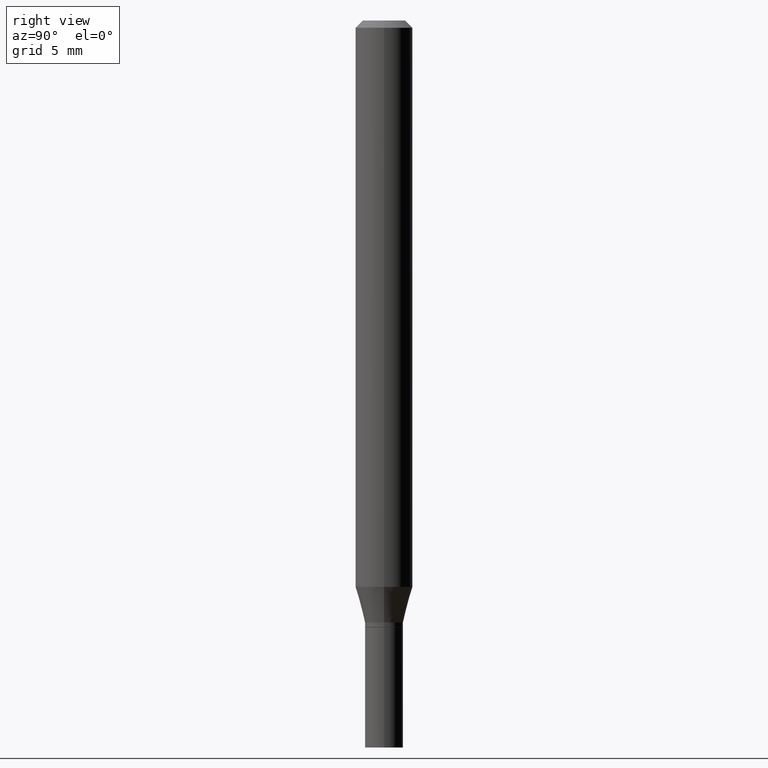
[diagram: clean part render]
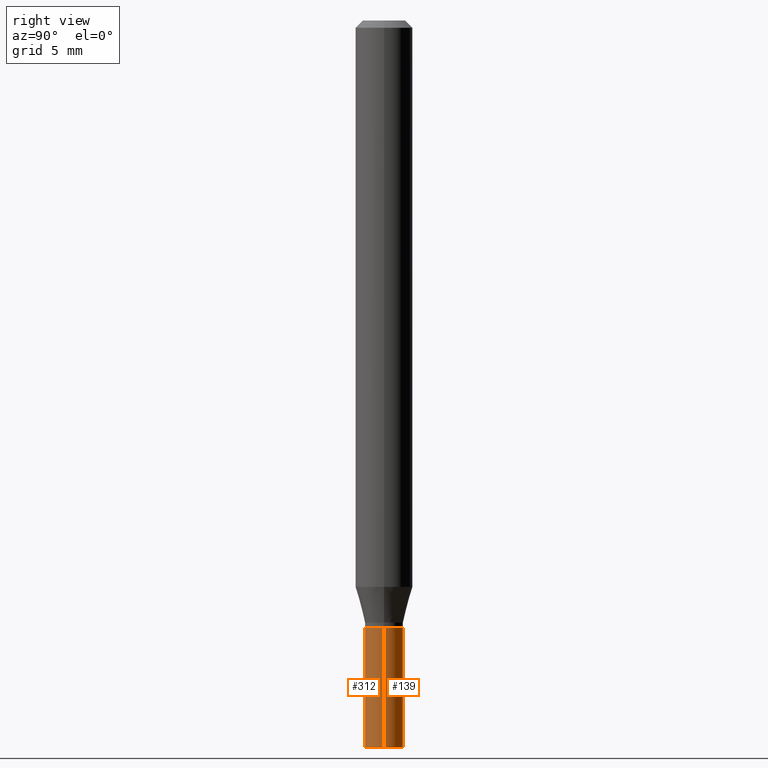
[diagram: same view with one multi-face feature highlighted, each face labeled with its STEP entity id]
A machine part, right view. The highlighted faces form ONE feature: a constant-radius fillet chain: 2 tangent blend faces with common blend radius 0.9995 mm. The faces share edges in the B-rep.
Their STEP definitions:
[1] entity #139 (Cylinder):
#12 = CARTESIAN_POINT ( 'NONE',  ( -0.03935000000000000303, -4.524679755726570119E-15, -1.252000000000000224 ) ) ;
#13 = EDGE_CURVE ( 'NONE', #134, #384, #282, .T. ) ;
#14 = DIRECTION ( 'NONE',  ( 1.000000000000000000, -6.982962677686269077E-15, 0.000000000000000000 ) ) ;
#16 = DIRECTION ( 'NONE',  ( -2.445468806185136877E-29, 3.491481338843145188E-15, 1.000000000000000000 ) ) ;
#37 = CARTESIAN_POINT ( 'NONE',  ( 3.061726945343791391E-29, -4.371334636231619274E-15, -1.252000000000000224 ) ) ;
#41 = AXIS2_PLACEMENT_3D ( 'NONE', #447, #403, #14 ) ;
#43 = EDGE_CURVE ( 'NONE', #97, #384, #431, .T. ) ;
#50 = CARTESIAN_POINT ( 'NONE',  ( -0.03935000000000000303, -4.524679755726570119E-15, -1.500000000000000222 ) ) ;
#77 = DIRECTION ( 'NONE',  ( -2.445468806185136597E-29, 3.491481338843145583E-15, 1.000000000000000000 ) ) ;
#83 = CARTESIAN_POINT ( 'NONE',  ( 0.03935000000000000303, -5.512001589631673094E-15, -1.500000000000000222 ) ) ;
#88 = DIRECTION ( 'NONE',  ( -2.445468806185136597E-29, 3.491481338843145583E-15, 1.000000000000000000 ) ) ;
#97 = VERTEX_POINT ( 'NONE', #107 ) ;
#107 = CARTESIAN_POINT ( 'NONE',  ( 0.03935000000000000303, -4.646114217598574191E-15, -1.252000000000000224 ) ) ;
#114 = VECTOR ( 'NONE', #466, 39.37007874015748143 ) ;
#126 = DIRECTION ( 'NONE',  ( 1.000000000000000000, -6.982962677686266711E-15, 4.876176775795936353E-29 ) ) ;
#134 = VERTEX_POINT ( 'NONE', #50 ) ;
#139 = ADVANCED_FACE ( 'NONE', ( #255 ), #374, .T. ) ;
#147 = EDGE_CURVE ( 'NONE', #244, #97, #408, .T. ) ;
#149 = DIRECTION ( 'NONE',  ( 1.000000000000000000, -6.982962677686269077E-15, 0.000000000000000000 ) ) ;
#166 = EDGE_CURVE ( 'NONE', #244, #134, #325, .T. ) ;
#195 = CARTESIAN_POINT ( 'NONE',  ( 0.03935000000000000303, -2.747795813669546211E-16, 1.918775561275701074E-30 ) ) ;
#212 = ORIENTED_EDGE ( 'NONE', *, *, #43, .F. ) ;
#242 = AXIS2_PLACEMENT_3D ( 'NONE', #302, #88, #126 ) ;
#244 = VERTEX_POINT ( 'NONE', #83 ) ;
#255 = FACE_OUTER_BOUND ( 'NONE', #285, .T. ) ;
#282 = LINE ( 'NONE', #429, #114 ) ;
#285 = EDGE_LOOP ( 'NONE', ( #388, #457, #212, #343 ) ) ;
#302 = CARTESIAN_POINT ( 'NONE',  ( 0.000000000000000000, 0.000000000000000000, 0.000000000000000000 ) ) ;
#325 = CIRCLE ( 'NONE', #41, 0.03935000000000000303 ) ;
#332 = VECTOR ( 'NONE', #16, 39.37007874015748143 ) ;
#343 = ORIENTED_EDGE ( 'NONE', *, *, #147, .F. ) ;
#374 = CYLINDRICAL_SURFACE ( 'NONE', #242, 0.03935000000000000303 ) ;
#384 = VERTEX_POINT ( 'NONE', #12 ) ;
#388 = ORIENTED_EDGE ( 'NONE', *, *, #166, .T. ) ;
#395 = AXIS2_PLACEMENT_3D ( 'NONE', #37, #77, #149 ) ;
#403 = DIRECTION ( 'NONE',  ( -2.445468806185136597E-29, 3.491481338843145583E-15, 1.000000000000000000 ) ) ;
#408 = LINE ( 'NONE', #195, #332 ) ;
#429 = CARTESIAN_POINT ( 'NONE',  ( -0.03935000000000000303, 2.795985665215994447E-16, -1.935600958015305291E-30 ) ) ;
#431 = CIRCLE ( 'NONE', #395, 0.03935000000000000303 ) ;
#447 = CARTESIAN_POINT ( 'NONE',  ( 3.668203209277704895E-29, -5.237222008264718177E-15, -1.500000000000000222 ) ) ;
#457 = ORIENTED_EDGE ( 'NONE', *, *, #13, .T. ) ;
#466 = DIRECTION ( 'NONE',  ( -2.445468806185136877E-29, 3.491481338843145188E-15, 1.000000000000000000 ) ) ;
[2] entity #312 (Cylinder):
#4 = DIRECTION ( 'NONE',  ( -2.445468806185136597E-29, 3.491481338843145583E-15, 1.000000000000000000 ) ) ;
#12 = CARTESIAN_POINT ( 'NONE',  ( -0.03935000000000000303, -4.524679755726570119E-15, -1.252000000000000224 ) ) ;
#13 = EDGE_CURVE ( 'NONE', #134, #384, #282, .T. ) ;
#15 = CYLINDRICAL_SURFACE ( 'NONE', #352, 0.03935000000000000303 ) ;
#16 = DIRECTION ( 'NONE',  ( -2.445468806185136877E-29, 3.491481338843145188E-15, 1.000000000000000000 ) ) ;
#50 = CARTESIAN_POINT ( 'NONE',  ( -0.03935000000000000303, -4.524679755726570119E-15, -1.500000000000000222 ) ) ;
#61 = EDGE_CURVE ( 'NONE', #384, #97, #319, .T. ) ;
#79 = FACE_OUTER_BOUND ( 'NONE', #390, .T. ) ;
#82 = DIRECTION ( 'NONE',  ( 1.000000000000000000, -6.982962677686266711E-15, 4.876176775795936353E-29 ) ) ;
#83 = CARTESIAN_POINT ( 'NONE',  ( 0.03935000000000000303, -5.512001589631673094E-15, -1.500000000000000222 ) ) ;
#90 = ORIENTED_EDGE ( 'NONE', *, *, #284, .T. ) ;
#97 = VERTEX_POINT ( 'NONE', #107 ) ;
#107 = CARTESIAN_POINT ( 'NONE',  ( 0.03935000000000000303, -4.646114217598574191E-15, -1.252000000000000224 ) ) ;
#114 = VECTOR ( 'NONE', #466, 39.37007874015748143 ) ;
#124 = DIRECTION ( 'NONE',  ( -2.445468806185136597E-29, 3.491481338843145583E-15, 1.000000000000000000 ) ) ;
#134 = VERTEX_POINT ( 'NONE', #50 ) ;
#147 = EDGE_CURVE ( 'NONE', #244, #97, #408, .T. ) ;
#160 = ORIENTED_EDGE ( 'NONE', *, *, #147, .T. ) ;
#188 = AXIS2_PLACEMENT_3D ( 'NONE', #220, #4, #358 ) ;
#195 = CARTESIAN_POINT ( 'NONE',  ( 0.03935000000000000303, -2.747795813669546211E-16, 1.918775561275701074E-30 ) ) ;
#216 = ORIENTED_EDGE ( 'NONE', *, *, #61, .F. ) ;
#220 = CARTESIAN_POINT ( 'NONE',  ( 3.061726945343791391E-29, -4.371334636231619274E-15, -1.252000000000000224 ) ) ;
#240 = ORIENTED_EDGE ( 'NONE', *, *, #13, .F. ) ;
#244 = VERTEX_POINT ( 'NONE', #83 ) ;
#282 = LINE ( 'NONE', #429, #114 ) ;
#284 = EDGE_CURVE ( 'NONE', #134, #244, #366, .T. ) ;
#290 = DIRECTION ( 'NONE',  ( 1.000000000000000000, -6.982962677686269077E-15, 0.000000000000000000 ) ) ;
#312 = ADVANCED_FACE ( 'NONE', ( #79 ), #15, .T. ) ;
#319 = CIRCLE ( 'NONE', #188, 0.03935000000000000303 ) ;
#332 = VECTOR ( 'NONE', #16, 39.37007874015748143 ) ;
#352 = AXIS2_PLACEMENT_3D ( 'NONE', #404, #371, #82 ) ;
#358 = DIRECTION ( 'NONE',  ( 1.000000000000000000, -6.982962677686269077E-15, 0.000000000000000000 ) ) ;
#366 = CIRCLE ( 'NONE', #375, 0.03935000000000000303 ) ;
#371 = DIRECTION ( 'NONE',  ( -2.445468806185136597E-29, 3.491481338843145583E-15, 1.000000000000000000 ) ) ;
#375 = AXIS2_PLACEMENT_3D ( 'NONE', #377, #124, #290 ) ;
#377 = CARTESIAN_POINT ( 'NONE',  ( 3.668203209277704895E-29, -5.237222008264718177E-15, -1.500000000000000222 ) ) ;
#384 = VERTEX_POINT ( 'NONE', #12 ) ;
#390 = EDGE_LOOP ( 'NONE', ( #240, #90, #160, #216 ) ) ;
#404 = CARTESIAN_POINT ( 'NONE',  ( 0.000000000000000000, 0.000000000000000000, 0.000000000000000000 ) ) ;
#408 = LINE ( 'NONE', #195, #332 ) ;
#429 = CARTESIAN_POINT ( 'NONE',  ( -0.03935000000000000303, 2.795985665215994447E-16, -1.935600958015305291E-30 ) ) ;
#466 = DIRECTION ( 'NONE',  ( -2.445468806185136877E-29, 3.491481338843145188E-15, 1.000000000000000000 ) ) ;